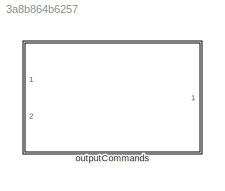
MODEL slx_3a8b864b6257
KIND library
CONFIG AbsTol = auto
CONFIG EnableMultiTasking = off
CONFIG FixedStep = auto
CONFIG MaxStep = auto
CONFIG MinStep = auto
CONFIG RelTol = 1e-3
CONFIG SampleTimeConstraint = Unconstrained
CONFIG Solver = VariableStepAuto
CONFIG SolverName = VariableStepAuto
CONFIG StartTime = 0.0
CONFIG StopTime = 10.0
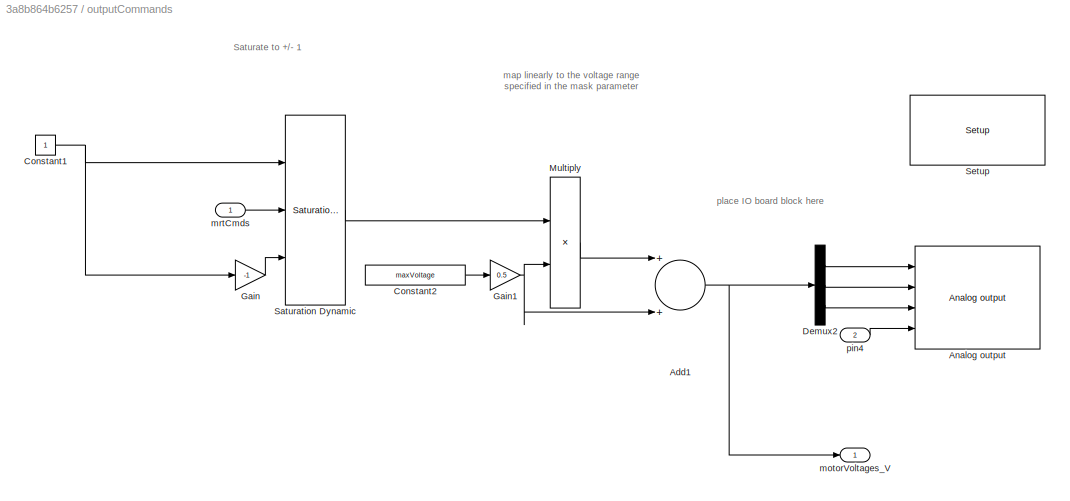
BLOCK [SubSystem] outputCommands
  Ports = [2, 1]
  RequestExecContextInheritance = off
BLOCK [Sum] outputCommands/Add1
  InputSameDT = off
  OutDataTypeStr = Inherit: Inherit via internal rule
  Ports = [2, 1]
  SaturateOnIntegerOverflow = off
BLOCK [Reference] outputCommands/Analog output   REF=speedgoatlib_IO130/Analog output 
  Ports = [4]
  SourceBlock = speedgoatlib_IO130/Analog output
  SourceProductName = Simulink Real-Time: Speedgoat I/O Driver Library
  SourceType = da_IO130
BLOCK [Constant] outputCommands/Constant1
BLOCK [Constant] outputCommands/Constant2
  Value = maxVoltage
BLOCK [Demux] outputCommands/Demux2
  DisplayOption = bar
  Outputs = 3
  Ports = [1, 3]
BLOCK [Gain] outputCommands/Gain
  Gain = -1
  OutDataTypeStr = Inherit: Inherit via internal rule
  ParamDataTypeStr = Inherit: Inherit via internal rule
  SaturateOnIntegerOverflow = off
BLOCK [Gain] outputCommands/Gain1
  Gain = 0.5
  OutDataTypeStr = Inherit: Inherit via internal rule
  ParamDataTypeStr = Inherit: Inherit via internal rule
  SaturateOnIntegerOverflow = off
BLOCK [Product] outputCommands/Multiply
  InputSameDT = off
  OutDataTypeStr = Inherit: Inherit via internal rule
  Ports = [2, 1]
  RndMeth = Floor
  SaturateOnIntegerOverflow = off
BLOCK [Reference] outputCommands/Saturation Dynamic  REF=simulink/Discontinuities/Saturation
Dynamic
  Ports = [3, 1]
  SourceBlock = simulink/Discontinuities/Saturation\nDynamic
  SourceProductBaseCode = SL
  SourceProductName = Simulink
  SourceType = Saturation Dynamic
BLOCK [Reference] outputCommands/Setup   REF=speedgoatlib_IO130/Setup 
  Ports = []
  SourceBlock = speedgoatlib_IO130/Setup
  SourceProductName = Simulink Real-Time: Speedgoat I/O Driver Library
  SourceType = setup_IO130
BLOCK [Outport] outputCommands/motorVoltages_V
  IconDisplay = Port number
  LockScale = on
BLOCK [Inport] outputCommands/mrtCmds
  IconDisplay = Port number
BLOCK [Inport] outputCommands/pin4
  IconDisplay = Port number
  Port = 2
ANNOTATION outputCommands: Saturate to +/- 1
ANNOTATION outputCommands: map linearly to the voltage range specified in the mask parameter
ANNOTATION outputCommands: place IO board block here
NET outputCommands/Add1:1 -> outputCommands/Demux2:1, outputCommands/motorVoltages_V:1
NET outputCommands/Constant1:1 -> outputCommands/Gain:1, outputCommands/Saturation Dynamic:1
LINE outputCommands/Constant2:1 -> outputCommands/Gain1:1
LINE outputCommands/Demux2:1 -> outputCommands/Analog output :1
LINE outputCommands/Demux2:2 -> outputCommands/Analog output :2
LINE outputCommands/Demux2:3 -> outputCommands/Analog output :3
NET outputCommands/Gain1:1 -> outputCommands/Add1:2, outputCommands/Multiply:2
LINE outputCommands/Gain:1 -> outputCommands/Saturation Dynamic:3
LINE outputCommands/Multiply:1 -> outputCommands/Add1:1
LINE outputCommands/Saturation Dynamic:1 -> outputCommands/Multiply:1
LINE outputCommands/mrtCmds:1 -> outputCommands/Saturation Dynamic:2
LINE outputCommands/pin4:1 -> outputCommands/Analog output :4
note: NET lines group one-source signal fan-out (src -> all destinations, sorted); 1:1 wires keep LINE
